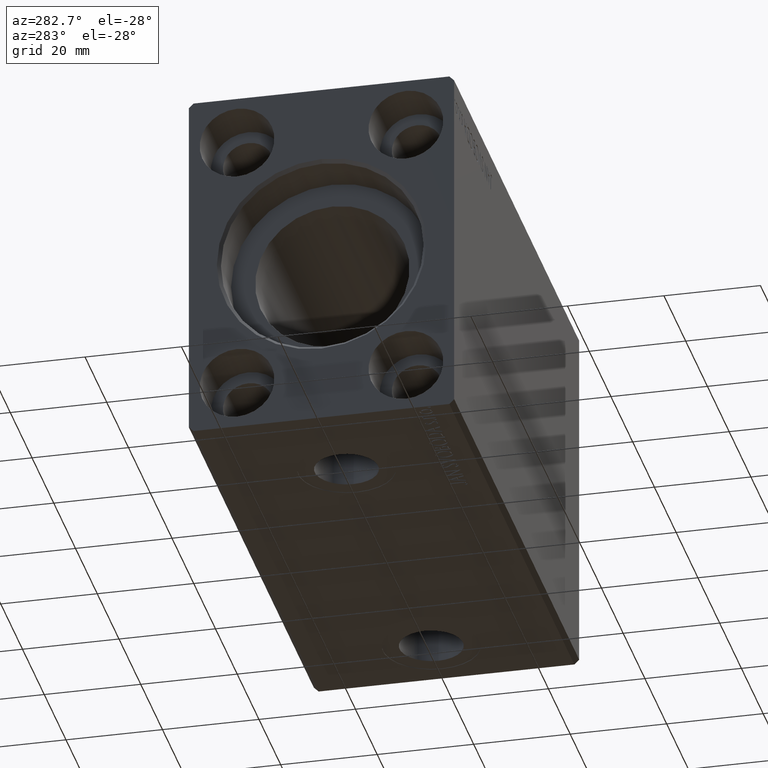
[diagram: clean part render]
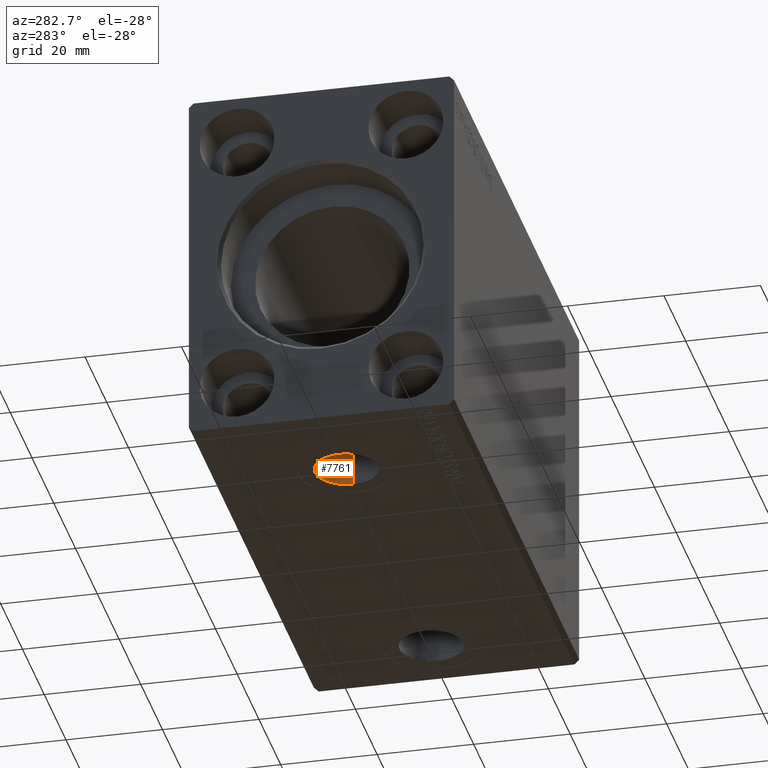
[diagram: same view with one face highlighted and labeled with its STEP entity id]
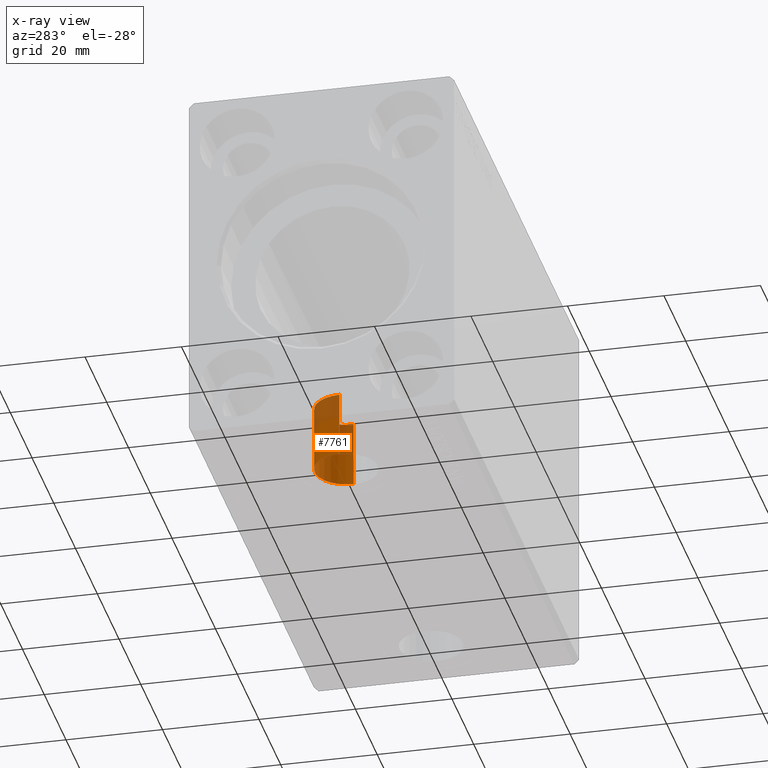
[diagram: x-ray of the same camera — body ghosted, the highlighted face saturated]
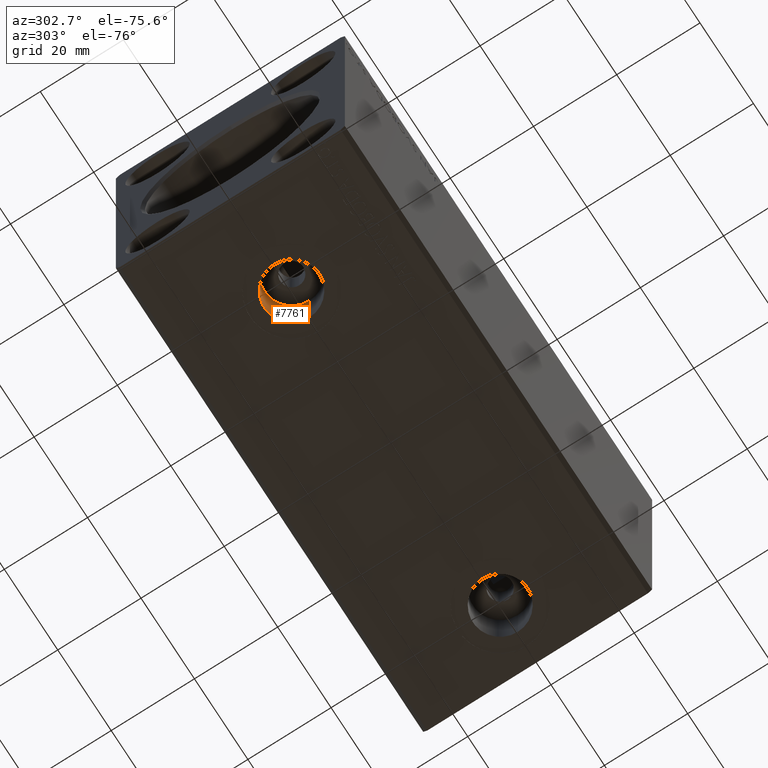
[diagram: same view with one face highlighted and labeled with its STEP entity id]
A machine part, auxiliary view. The second image highlights one B-rep face of the part: STEP entity #7761.
The next image is the same camera in x-ray: the body ghosted, the highlighted face saturated — about 31% of this face is hidden behind the body in this view.
A second angle (auxiliary view) of the same face is appended — the face is thin or edge-on in the first view.
In plain terms, the highlighted cylindrical surface (edge-blend (fillet) strip) has radius 6.58 mm, axis along (-0, -0, -1).
Its self-contained STEP definition (entity closure, byte-faithful):
#1113 = CARTESIAN_POINT ( 'NONE',  ( 29.58000000000000185, -2.727298015600992818E-15, -23.79999999999998650 ) ) ;
#2522 = VERTEX_POINT ( 'NONE', #22823 ) ;
#3638 = DIRECTION ( 'NONE',  ( -1.000000000000000000, 0.000000000000000000, 0.000000000000000000 ) ) ;
#3686 = VECTOR ( 'NONE', #10813, 1000.000000000000000 ) ;
#4467 = VERTEX_POINT ( 'NONE', #16870 ) ;
#5134 = EDGE_LOOP ( 'NONE', ( #23447, #33653, #25255, #39627 ) ) ;
#6757 = EDGE_CURVE ( 'NONE', #4467, #33741, #17424, .T. ) ;
#7761 = ADVANCED_FACE ( 'NONE', ( #16362 ), #22838, .F. ) ;
#10491 = VECTOR ( 'NONE', #13823, 1000.000000000000000 ) ;
#10813 = DIRECTION ( 'NONE',  ( -0.000000000000000000, -0.000000000000000000, -1.000000000000000000 ) ) ;
#10986 = DIRECTION ( 'NONE',  ( -1.000000000000000000, 0.000000000000000000, 0.000000000000000000 ) ) ;
#11172 = EDGE_CURVE ( 'NONE', #35578, #2522, #32602, .T. ) ;
#11663 = LINE ( 'NONE', #24170, #3686 ) ;
#13202 = LINE ( 'NONE', #39276, #10491 ) ;
#13553 = DIRECTION ( 'NONE',  ( -0.000000000000000000, -0.000000000000000000, -1.000000000000000000 ) ) ;
#13823 = DIRECTION ( 'NONE',  ( -0.000000000000000000, -0.000000000000000000, -1.000000000000000000 ) ) ;
#14727 = DIRECTION ( 'NONE',  ( 0.000000000000000000, 0.000000000000000000, -1.000000000000000000 ) ) ;
#16362 = FACE_OUTER_BOUND ( 'NONE', #5134, .T. ) ;
#16870 = CARTESIAN_POINT ( 'NONE',  ( 16.41999999999999815, -3.533115609439951465E-15, -23.79999999999998650 ) ) ;
#17424 = CIRCLE ( 'NONE', #37387, 6.580000000000002736 ) ;
#18099 = EDGE_CURVE ( 'NONE', #33741, #2522, #13202, .T. ) ;
#22823 = CARTESIAN_POINT ( 'NONE',  ( 29.58000000000000185, -2.727298015600992818E-15, -37.39999999999999147 ) ) ;
#22838 = CYLINDRICAL_SURFACE ( 'NONE', #33316, 6.580000000000002736 ) ;
#23447 = ORIENTED_EDGE ( 'NONE', *, *, #18099, .F. ) ;
#24170 = CARTESIAN_POINT ( 'NONE',  ( 16.41999999999999815, -3.533115609439951465E-15, -23.79999999999998650 ) ) ;
#25255 = ORIENTED_EDGE ( 'NONE', *, *, #42514, .T. ) ;
#26383 = AXIS2_PLACEMENT_3D ( 'NONE', #38426, #14727, #34777 ) ;
#26436 = CARTESIAN_POINT ( 'NONE',  ( 16.41999999999999815, -3.533115609439951465E-15, -37.39999999999999147 ) ) ;
#32602 = CIRCLE ( 'NONE', #26383, 6.580000000000002736 ) ;
#33175 = CARTESIAN_POINT ( 'NONE',  ( 23.00000000000000000, -3.533115609439951465E-15, -23.79999999999998650 ) ) ;
#33316 = AXIS2_PLACEMENT_3D ( 'NONE', #33175, #13553, #3638 ) ;
#33653 = ORIENTED_EDGE ( 'NONE', *, *, #6757, .F. ) ;
#33741 = VERTEX_POINT ( 'NONE', #1113 ) ;
#34266 = DIRECTION ( 'NONE',  ( 0.000000000000000000, 0.000000000000000000, -1.000000000000000000 ) ) ;
#34777 = DIRECTION ( 'NONE',  ( -1.000000000000000000, 0.000000000000000000, 0.000000000000000000 ) ) ;
#35578 = VERTEX_POINT ( 'NONE', #26436 ) ;
#37387 = AXIS2_PLACEMENT_3D ( 'NONE', #37496, #34266, #10986 ) ;
#37496 = CARTESIAN_POINT ( 'NONE',  ( 23.00000000000000000, -3.533115609439951465E-15, -23.79999999999998650 ) ) ;
#38426 = CARTESIAN_POINT ( 'NONE',  ( 23.00000000000000000, -3.533115609439951465E-15, -37.39999999999999147 ) ) ;
#39276 = CARTESIAN_POINT ( 'NONE',  ( 29.58000000000000185, -2.727298015600992818E-15, -23.79999999999998650 ) ) ;
#39627 = ORIENTED_EDGE ( 'NONE', *, *, #11172, .T. ) ;
#42514 = EDGE_CURVE ( 'NONE', #4467, #35578, #11663, .T. ) ;